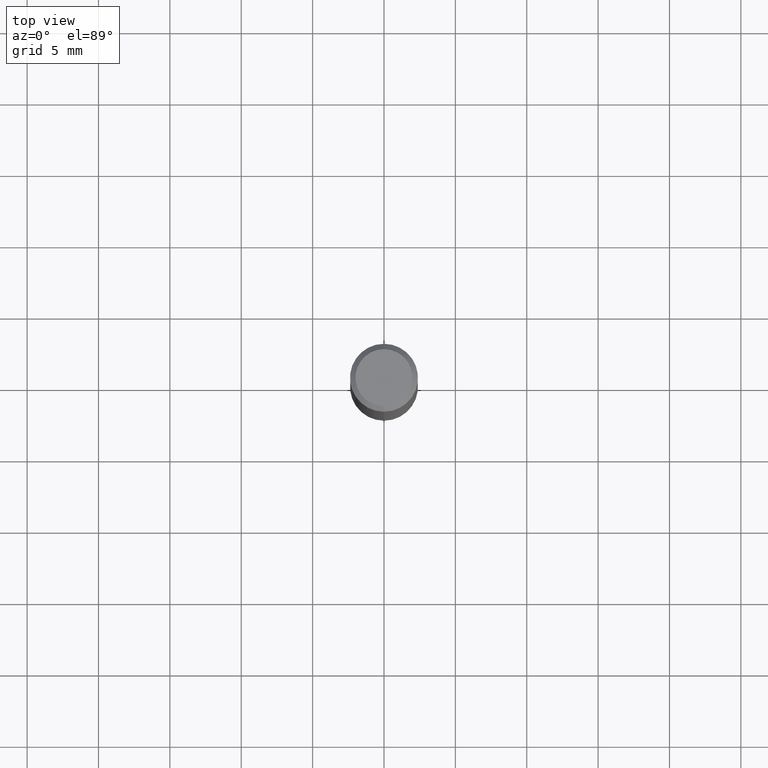
[diagram: clean part render]
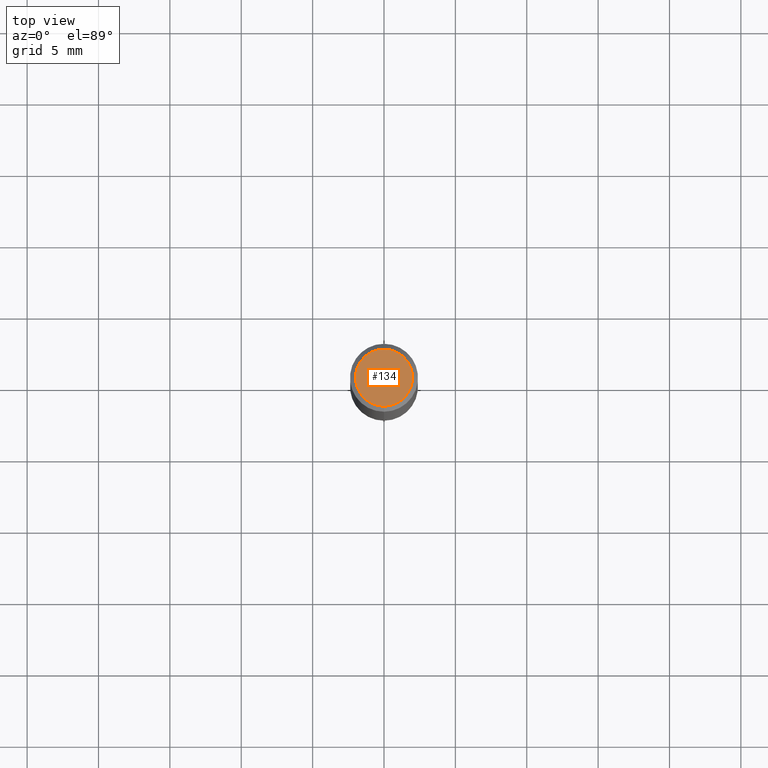
[diagram: same view with one face highlighted and labeled with its STEP entity id]
A machine part, top view. The second image highlights one B-rep face of the part: STEP entity #134.
In plain terms, the highlighted planar face has unit normal (0, -0, -1).
Its self-contained STEP definition (entity closure, byte-faithful):
#11 = ORIENTED_EDGE ( 'NONE', *, *, #63, .T. ) ;
#12 = DIRECTION ( 'NONE',  ( -2.445771070544258513E-29, 3.491048479077063976E-15, 1.000000000000000000 ) ) ;
#24 = CARTESIAN_POINT ( 'NONE',  ( 6.022805309504406221E-16, 0.07875000000000001443, -4.502505457365932201E-16 ) ) ;
#63 = EDGE_CURVE ( 'NONE', #225, #168, #336, .T. ) ;
#73 = DIRECTION ( 'NONE',  ( -2.445771070544258513E-29, 3.491048479077063976E-15, 1.000000000000000000 ) ) ;
#95 = EDGE_CURVE ( 'NONE', #168, #225, #348, .T. ) ;
#102 = FACE_OUTER_BOUND ( 'NONE', #421, .T. ) ;
#134 = ADVANCED_FACE ( 'NONE', ( #102 ), #453, .F. ) ;
#147 = DIRECTION ( 'NONE',  ( -6.982962677686264344E-15, -1.000000000000000000, 3.491048479077063976E-15 ) ) ;
#168 = VERTEX_POINT ( 'NONE', #24 ) ;
#225 = VERTEX_POINT ( 'NONE', #303 ) ;
#228 = CARTESIAN_POINT ( 'NONE',  ( 4.288182108997796267E-45, -6.120871985901321353E-31, -1.753304780092744197E-16 ) ) ;
#257 = DIRECTION ( 'NONE',  ( 6.982962677686265922E-15, 1.000000000000000000, -3.491048479077063581E-15 ) ) ;
#261 = DIRECTION ( 'NONE',  ( -6.982962677686264344E-15, -1.000000000000000000, 3.491048479077063976E-15 ) ) ;
#271 = CARTESIAN_POINT ( 'NONE',  ( 4.288182108997796267E-45, -6.120871985901321353E-31, -1.753304780092744197E-16 ) ) ;
#303 = CARTESIAN_POINT ( 'NONE',  ( -5.917179523077944868E-16, -0.07875000000000001443, 9.958958971804440537E-17 ) ) ;
#333 = DIRECTION ( 'NONE',  ( 2.445771070544258513E-29, -3.491048479077063581E-15, -1.000000000000000000 ) ) ;
#336 = CIRCLE ( 'NONE', #481, 0.07875000000000001443 ) ;
#340 = ORIENTED_EDGE ( 'NONE', *, *, #95, .T. ) ;
#348 = CIRCLE ( 'NONE', #407, 0.07875000000000001443 ) ;
#367 = AXIS2_PLACEMENT_3D ( 'NONE', #386, #333, #257 ) ;
#386 = CARTESIAN_POINT ( 'NONE',  ( 5.499083108677934443E-16, 0.07875000000000001443, -3.625853067319560965E-16 ) ) ;
#407 = AXIS2_PLACEMENT_3D ( 'NONE', #228, #12, #261 ) ;
#421 = EDGE_LOOP ( 'NONE', ( #340, #11 ) ) ;
#453 = PLANE ( 'NONE',  #367 ) ;
#481 = AXIS2_PLACEMENT_3D ( 'NONE', #271, #73, #147 ) ;